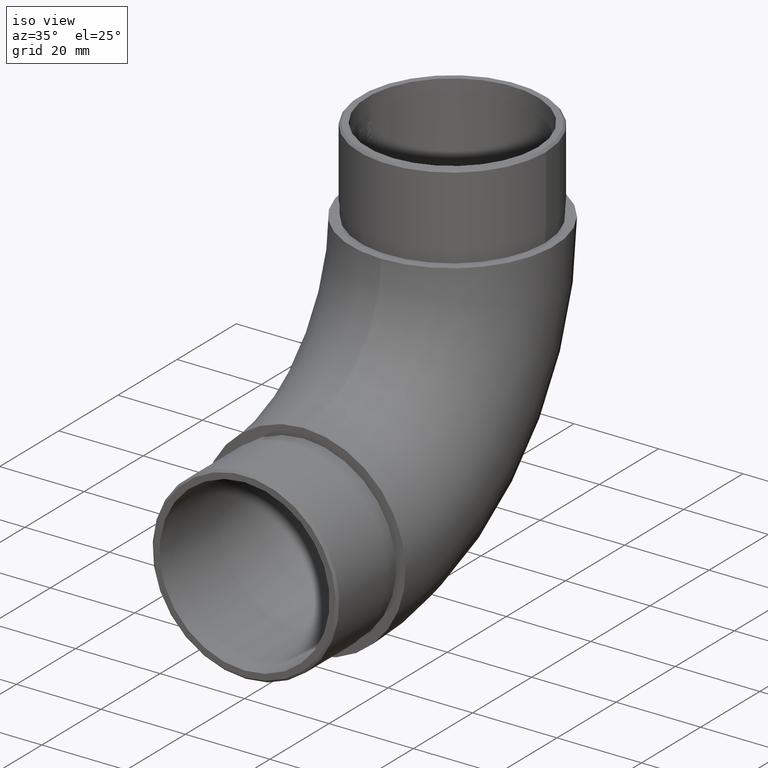
[diagram: clean part render]
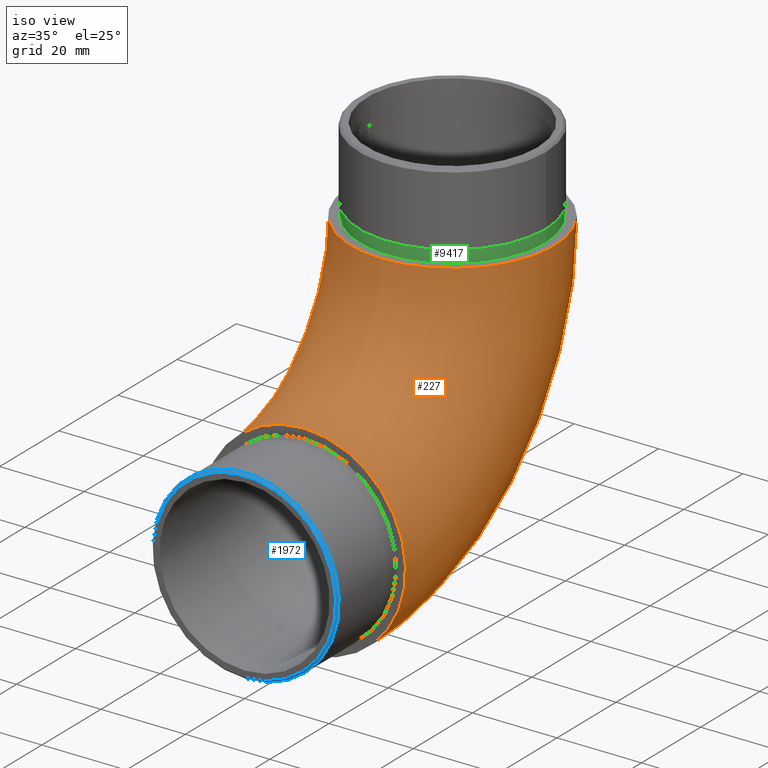
[diagram: same view with three faces highlighted in distinct colors, each labeled with its STEP entity id]
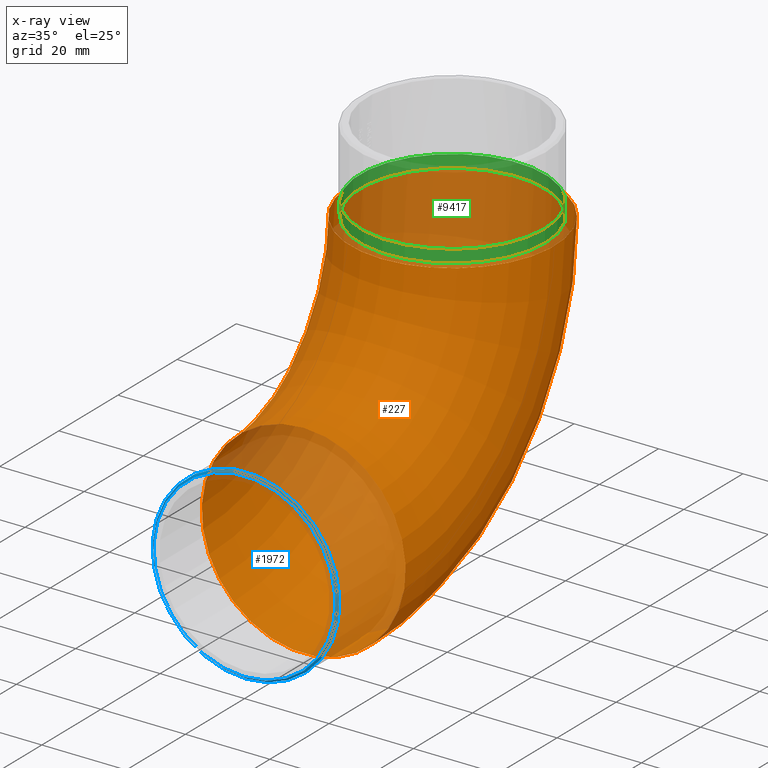
[diagram: x-ray of the same camera — body ghosted, the three highlighted faces saturated]
A machine part, iso view with three faces highlighted in distinct colors.
The next image is the same camera in x-ray (body ghosted, the three faces saturated) — at least one of them is partly hidden behind the body in this view.
Their STEP definitions:

[orange] entity #227 — the highlighted toroidal blend (fillet) surface has major radius 50.35 mm and minor (blend) radius 24.15 mm.
#227 = ADVANCED_FACE ( 'NONE', ( #2158, #1298 ), #11593, .T. ) ;
#339 = EDGE_CURVE ( 'NONE', #2294, #2294, #7883, .T. ) ;
#1298 = FACE_OUTER_BOUND ( 'NONE', #2884, .T. ) ;
#2158 = FACE_OUTER_BOUND ( 'NONE', #7690, .T. ) ;
#2294 = VERTEX_POINT ( 'NONE', #11269 ) ;
#2295 = CARTESIAN_POINT ( 'NONE',  ( 0.0000000000000000000, 26.19999999999997400, 74.50000000000000000 ) ) ;
#2884 = EDGE_LOOP ( 'NONE', ( #8866 ) ) ;
#3343 = AXIS2_PLACEMENT_3D ( 'NONE', #11756, #8974, #3483 ) ;
#3420 = EDGE_CURVE ( 'NONE', #4588, #4588, #5212, .T. ) ;
#3483 = DIRECTION ( 'NONE',  ( 0.0000000000000000000, 0.0000000000000000000, 1.000000000000000000 ) ) ;
#4091 = CARTESIAN_POINT ( 'NONE',  ( 0.0000000000000000000, 50.34999999999998000, 74.50000000000000000 ) ) ;
#4588 = VERTEX_POINT ( 'NONE', #2295 ) ;
#5192 = DIRECTION ( 'NONE',  ( 0.0000000000000000000, 0.0000000000000000000, 1.000000000000000000 ) ) ;
#5212 = CIRCLE ( 'NONE', #6976, 24.15000000000000600 ) ;
#6385 = AXIS2_PLACEMENT_3D ( 'NONE', #9731, #7962, #5192 ) ;
#6976 = AXIS2_PLACEMENT_3D ( 'NONE', #4091, #11550, #11512 ) ;
#7553 = ORIENTED_EDGE ( 'NONE', *, *, #3420, .F. ) ;
#7690 = EDGE_LOOP ( 'NONE', ( #7553 ) ) ;
#7883 = CIRCLE ( 'NONE', #3343, 24.15000000000000900 ) ;
#7962 = DIRECTION ( 'NONE',  ( -1.000000000000000000, -0.0000000000000000000, -0.0000000000000000000 ) ) ;
#8866 = ORIENTED_EDGE ( 'NONE', *, *, #339, .T. ) ;
#8974 = DIRECTION ( 'NONE',  ( 0.0000000000000000000, 1.000000000000000000, 0.0000000000000000000 ) ) ;
#9731 = CARTESIAN_POINT ( 'NONE',  ( 0.0000000000000000000, -6.938893903907228400E-015, 74.50000000000000000 ) ) ;
#11269 = CARTESIAN_POINT ( 'NONE',  ( 0.0000000000000000000, 0.0000000000000000000, 48.30000000000001100 ) ) ;
#11512 = DIRECTION ( 'NONE',  ( 0.0000000000000000000, -1.000000000000000000, 0.0000000000000000000 ) ) ;
#11550 = DIRECTION ( 'NONE',  ( 0.0000000000000000000, 6.123233995736766000E-017, 1.000000000000000000 ) ) ;
#11593 = TOROIDAL_SURFACE ( 'NONE', #6385, 50.34999999999998700, 24.15000000000000600 ) ;
#11756 = CARTESIAN_POINT ( 'NONE',  ( 0.0000000000000000000, 0.0000000000000000000, 24.15000000000000200 ) ) ;

[blue] entity #1972 — the highlighted conical surface has half-angle 45 deg.
#491 = CARTESIAN_POINT ( 'NONE',  ( 0.0000000000000000000, -20.00000000000000000, 2.549999999999982900 ) ) ;
#639 = EDGE_CURVE ( 'NONE', #5312, #5312, #11163, .T. ) ;
#815 = DIRECTION ( 'NONE',  ( 0.0000000000000000000, 0.0000000000000000000, 1.000000000000000000 ) ) ;
#986 = VERTEX_POINT ( 'NONE', #491 ) ;
#1647 = ORIENTED_EDGE ( 'NONE', *, *, #639, .F. ) ;
#1972 = ADVANCED_FACE ( 'NONE', ( #4732, #5861 ), #6565, .T. ) ;
#2320 = DIRECTION ( 'NONE',  ( 0.0000000000000000000, 1.000000000000000000, 0.0000000000000000000 ) ) ;
#3619 = CARTESIAN_POINT ( 'NONE',  ( 0.0000000000000000000, -20.00000000000000000, 24.15000000000001300 ) ) ;
#3880 = ORIENTED_EDGE ( 'NONE', *, *, #9541, .F. ) ;
#4162 = DIRECTION ( 'NONE',  ( 0.0000000000000000000, 0.0000000000000000000, -1.000000000000000000 ) ) ;
#4430 = DIRECTION ( 'NONE',  ( 0.0000000000000000000, 0.0000000000000000000, -1.000000000000000000 ) ) ;
#4709 = AXIS2_PLACEMENT_3D ( 'NONE', #7696, #2320, #4162 ) ;
#4732 = FACE_OUTER_BOUND ( 'NONE', #9735, .T. ) ;
#5033 = CARTESIAN_POINT ( 'NONE',  ( 0.0000000000000000000, -19.50000000000002500, 2.050000000000010000 ) ) ;
#5224 = CIRCLE ( 'NONE', #6473, 21.60000000000003000 ) ;
#5312 = VERTEX_POINT ( 'NONE', #5033 ) ;
#5316 = DIRECTION ( 'NONE',  ( 0.0000000000000000000, -1.000000000000000000, 0.0000000000000000000 ) ) ;
#5698 = AXIS2_PLACEMENT_3D ( 'NONE', #3619, #10019, #815 ) ;
#5861 = FACE_BOUND ( 'NONE', #7875, .T. ) ;
#6473 = AXIS2_PLACEMENT_3D ( 'NONE', #7972, #5316, #4430 ) ;
#6565 = CONICAL_SURFACE ( 'NONE', #5698, 21.60000000000003000, 0.7853981633974447300 ) ;
#7696 = CARTESIAN_POINT ( 'NONE',  ( 0.0000000000000000000, -19.50000000000002500, 24.15000000000001300 ) ) ;
#7875 = EDGE_LOOP ( 'NONE', ( #3880 ) ) ;
#7972 = CARTESIAN_POINT ( 'NONE',  ( 0.0000000000000000000, -20.00000000000000000, 24.15000000000001300 ) ) ;
#9541 = EDGE_CURVE ( 'NONE', #986, #986, #5224, .T. ) ;
#9735 = EDGE_LOOP ( 'NONE', ( #1647 ) ) ;
#10019 = DIRECTION ( 'NONE',  ( 0.0000000000000000000, 1.000000000000000000, 0.0000000000000000000 ) ) ;
#11163 = CIRCLE ( 'NONE', #4709, 22.10000000000000100 ) ;

[green] entity #9417 — the highlighted cylindrical surface (bore or boss wall) has radius 21.9 mm, axis along (-0, -0, -1).
#1147 = ORIENTED_EDGE ( 'NONE', *, *, #2415, .F. ) ;
#1526 = EDGE_LOOP ( 'NONE', ( #1147 ) ) ;
#2171 = CARTESIAN_POINT ( 'NONE',  ( 21.90000000000000200, 50.34999999999998000, 74.50000000000000000 ) ) ;
#2338 = FACE_OUTER_BOUND ( 'NONE', #1526, .T. ) ;
#2415 = EDGE_CURVE ( 'NONE', #10992, #10992, #6981, .T. ) ;
#2811 = EDGE_CURVE ( 'NONE', #5168, #5168, #6699, .T. ) ;
#3034 = AXIS2_PLACEMENT_3D ( 'NONE', #5862, #8500, #9395 ) ;
#4351 = CYLINDRICAL_SURFACE ( 'NONE', #3034, 21.90000000000000200 ) ;
#4941 = CARTESIAN_POINT ( 'NONE',  ( 0.0000000000000000000, 50.34999999999998000, 77.50000000000000000 ) ) ;
#5168 = VERTEX_POINT ( 'NONE', #2171 ) ;
#5550 = DIRECTION ( 'NONE',  ( 1.000000000000000000, 0.0000000000000000000, 0.0000000000000000000 ) ) ;
#5824 = DIRECTION ( 'NONE',  ( 1.000000000000000000, 0.0000000000000000000, 0.0000000000000000000 ) ) ;
#5862 = CARTESIAN_POINT ( 'NONE',  ( 0.0000000000000000000, 50.34999999999998000, 77.50000000000000000 ) ) ;
#5907 = EDGE_LOOP ( 'NONE', ( #6472 ) ) ;
#6286 = CARTESIAN_POINT ( 'NONE',  ( 0.0000000000000000000, 50.34999999999998000, 74.50000000000000000 ) ) ;
#6472 = ORIENTED_EDGE ( 'NONE', *, *, #2811, .T. ) ;
#6699 = CIRCLE ( 'NONE', #7430, 21.90000000000000200 ) ;
#6981 = CIRCLE ( 'NONE', #9297, 21.90000000000000200 ) ;
#7430 = AXIS2_PLACEMENT_3D ( 'NONE', #6286, #10136, #5550 ) ;
#8500 = DIRECTION ( 'NONE',  ( -0.0000000000000000000, -0.0000000000000000000, -1.000000000000000000 ) ) ;
#9297 = AXIS2_PLACEMENT_3D ( 'NONE', #4941, #11295, #5824 ) ;
#9395 = DIRECTION ( 'NONE',  ( -1.000000000000000000, 0.0000000000000000000, 0.0000000000000000000 ) ) ;
#9417 = ADVANCED_FACE ( 'NONE', ( #2338, #9788 ), #4351, .T. ) ;
#9788 = FACE_OUTER_BOUND ( 'NONE', #5907, .T. ) ;
#10136 = DIRECTION ( 'NONE',  ( 0.0000000000000000000, 0.0000000000000000000, 1.000000000000000000 ) ) ;
#10992 = VERTEX_POINT ( 'NONE', #11352 ) ;
#11295 = DIRECTION ( 'NONE',  ( 0.0000000000000000000, 0.0000000000000000000, 1.000000000000000000 ) ) ;
#11352 = CARTESIAN_POINT ( 'NONE',  ( 21.90000000000000200, 50.34999999999998000, 77.50000000000000000 ) ) ;